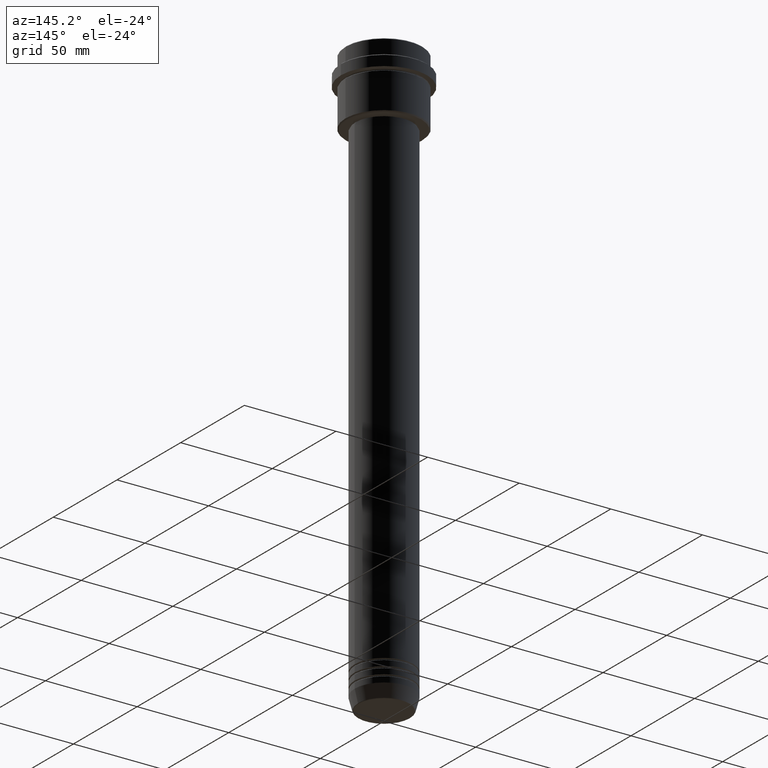
[diagram: clean part render]
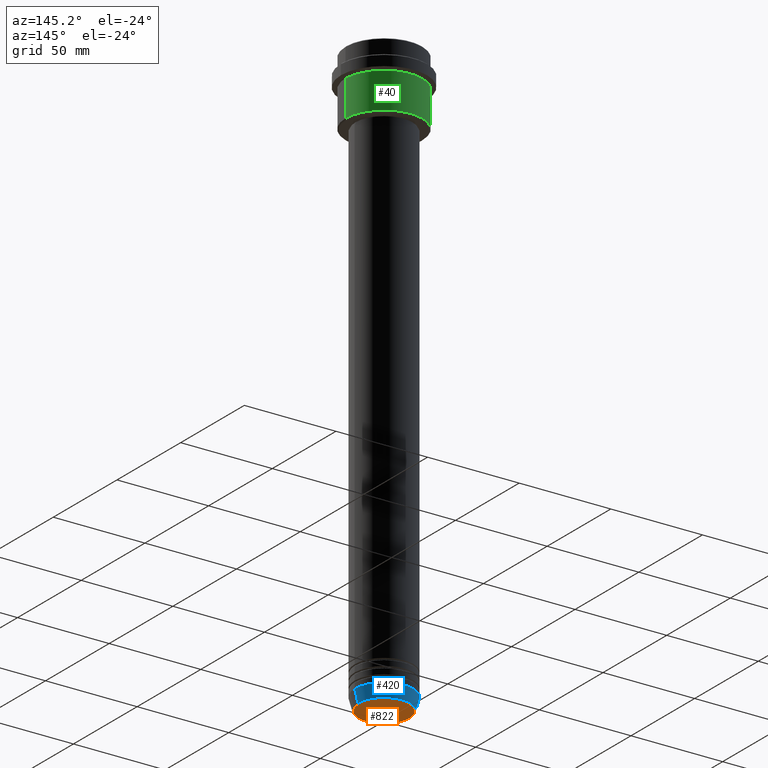
[diagram: same view with three faces highlighted in distinct colors, each labeled with its STEP entity id]
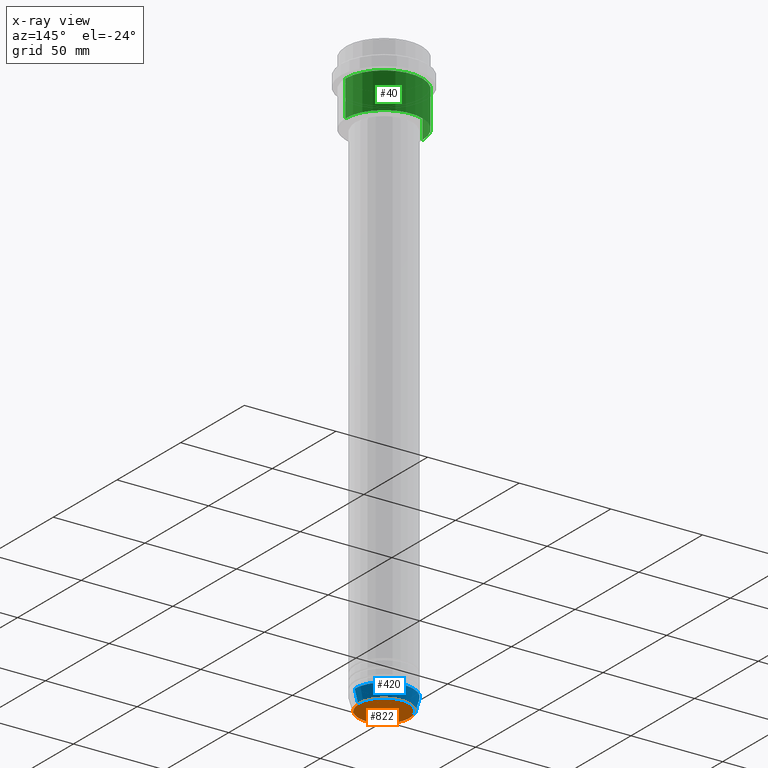
[diagram: x-ray of the same camera — body ghosted, the three highlighted faces saturated]
A machine part, auxiliary view with three faces highlighted in distinct colors.
The next image is the same camera in x-ray (body ghosted, the three faces saturated) — at least one of them is partly hidden behind the body in this view.
Their STEP definitions:

[orange] entity #822 — the highlighted planar face has unit normal (0, -0, 1).
#29 = CARTESIAN_POINT ( 'NONE',  ( 13.74069215899265828, 0.000000000000000000, -321.0000000000000000 ) ) ;
#77 = DIRECTION ( 'NONE',  ( 0.000000000000000000, 0.000000000000000000, -1.000000000000000000 ) ) ;
#96 = CARTESIAN_POINT ( 'NONE',  ( 0.000000000000000000, 0.000000000000000000, -321.0000000000000000 ) ) ;
#183 = AXIS2_PLACEMENT_3D ( 'NONE', #96, #1268, #1059 ) ;
#220 = AXIS2_PLACEMENT_3D ( 'NONE', #275, #1127, #704 ) ;
#255 = FACE_OUTER_BOUND ( 'NONE', #1380, .T. ) ;
#266 = VERTEX_POINT ( 'NONE', #354 ) ;
#275 = CARTESIAN_POINT ( 'NONE',  ( 0.000000000000000000, 0.000000000000000000, -321.0000000000000000 ) ) ;
#354 = CARTESIAN_POINT ( 'NONE',  ( -13.74069215899265828, 1.712322416342415986E-15, -321.0000000000000000 ) ) ;
#376 = CIRCLE ( 'NONE', #770, 13.74069215899265828 ) ;
#462 = EDGE_CURVE ( 'NONE', #633, #266, #791, .T. ) ;
#524 = CARTESIAN_POINT ( 'NONE',  ( 0.000000000000000000, 0.000000000000000000, -321.0000000000000000 ) ) ;
#633 = VERTEX_POINT ( 'NONE', #29 ) ;
#689 = PLANE ( 'NONE',  #220 ) ;
#704 = DIRECTION ( 'NONE',  ( 1.000000000000000000, 0.000000000000000000, 0.000000000000000000 ) ) ;
#770 = AXIS2_PLACEMENT_3D ( 'NONE', #524, #77, #1384 ) ;
#781 = ORIENTED_EDGE ( 'NONE', *, *, #986, .T. ) ;
#791 = CIRCLE ( 'NONE', #183, 13.74069215899265828 ) ;
#822 = ADVANCED_FACE ( 'NONE', ( #255 ), #689, .F. ) ;
#986 = EDGE_CURVE ( 'NONE', #266, #633, #376, .T. ) ;
#1008 = ORIENTED_EDGE ( 'NONE', *, *, #462, .T. ) ;
#1059 = DIRECTION ( 'NONE',  ( 1.000000000000000000, 0.000000000000000000, 0.000000000000000000 ) ) ;
#1127 = DIRECTION ( 'NONE',  ( 0.000000000000000000, -0.000000000000000000, 1.000000000000000000 ) ) ;
#1268 = DIRECTION ( 'NONE',  ( 0.000000000000000000, 0.000000000000000000, -1.000000000000000000 ) ) ;
#1380 = EDGE_LOOP ( 'NONE', ( #1008, #781 ) ) ;
#1384 = DIRECTION ( 'NONE',  ( 1.000000000000000000, 0.000000000000000000, 0.000000000000000000 ) ) ;

[blue] entity #420 — the highlighted conical surface has half-angle 15 deg.
#57 = CARTESIAN_POINT ( 'NONE',  ( -16.00000000000000000, 1.959434878635765131E-15, -314.0000000000000000 ) ) ;
#156 = EDGE_CURVE ( 'NONE', #571, #728, #1118, .T. ) ;
#219 = DIRECTION ( 'NONE',  ( 1.000000000000000000, 0.000000000000000000, 0.000000000000000000 ) ) ;
#241 = CARTESIAN_POINT ( 'NONE',  ( 16.00000000000000000, 0.000000000000000000, -314.0000000000000000 ) ) ;
#244 = CONICAL_SURFACE ( 'NONE', #1085, 16.00000000000000000, 0.2617993877991500740 ) ;
#302 = DIRECTION ( 'NONE',  ( -0.000000000000000000, -0.000000000000000000, 1.000000000000000000 ) ) ;
#369 = CARTESIAN_POINT ( 'NONE',  ( 0.000000000000000000, 0.000000000000000000, -314.0000000000000000 ) ) ;
#378 = AXIS2_PLACEMENT_3D ( 'NONE', #1196, #990, #219 ) ;
#410 = CARTESIAN_POINT ( 'NONE',  ( 14.22365507213718772, 0.000000000000000000, -320.6294095225512706 ) ) ;
#420 = ADVANCED_FACE ( 'NONE', ( #1351 ), #244, .T. ) ;
#450 = CIRCLE ( 'NONE', #1411, 14.22365507213718772 ) ;
#482 = LINE ( 'NONE', #1358, #1244 ) ;
#571 = VERTEX_POINT ( 'NONE', #410 ) ;
#586 = EDGE_CURVE ( 'NONE', #571, #906, #450, .T. ) ;
#679 = DIRECTION ( 'NONE',  ( 0.2588190451025213501, 0.000000000000000000, 0.9659258262890680902 ) ) ;
#711 = EDGE_LOOP ( 'NONE', ( #1274, #1402, #1276, #1417 ) ) ;
#728 = VERTEX_POINT ( 'NONE', #241 ) ;
#733 = DIRECTION ( 'NONE',  ( 1.000000000000000000, 0.000000000000000000, 0.000000000000000000 ) ) ;
#778 = CARTESIAN_POINT ( 'NONE',  ( 16.00000000000000000, 0.000000000000000000, -314.0000000000000000 ) ) ;
#803 = DIRECTION ( 'NONE',  ( -0.000000000000000000, -0.000000000000000000, 1.000000000000000000 ) ) ;
#805 = DIRECTION ( 'NONE',  ( -0.2588190451025213501, 3.169619151431772337E-17, 0.9659258262890680902 ) ) ;
#854 = EDGE_CURVE ( 'NONE', #906, #889, #482, .T. ) ;
#889 = VERTEX_POINT ( 'NONE', #57 ) ;
#906 = VERTEX_POINT ( 'NONE', #1265 ) ;
#990 = DIRECTION ( 'NONE',  ( -0.000000000000000000, -0.000000000000000000, 1.000000000000000000 ) ) ;
#1041 = CIRCLE ( 'NONE', #378, 16.00000000000000000 ) ;
#1074 = CARTESIAN_POINT ( 'NONE',  ( 0.000000000000000000, 0.000000000000000000, -320.6294095225512706 ) ) ;
#1085 = AXIS2_PLACEMENT_3D ( 'NONE', #369, #803, #1138 ) ;
#1114 = VECTOR ( 'NONE', #679, 1000.000000000000000 ) ;
#1118 = LINE ( 'NONE', #778, #1114 ) ;
#1138 = DIRECTION ( 'NONE',  ( 1.000000000000000000, 0.000000000000000000, 0.000000000000000000 ) ) ;
#1146 = EDGE_CURVE ( 'NONE', #728, #889, #1041, .T. ) ;
#1196 = CARTESIAN_POINT ( 'NONE',  ( 0.000000000000000000, 0.000000000000000000, -314.0000000000000000 ) ) ;
#1244 = VECTOR ( 'NONE', #805, 1000.000000000000000 ) ;
#1265 = CARTESIAN_POINT ( 'NONE',  ( -14.22365507213718772, 1.850665122131323337E-15, -320.6294095225512706 ) ) ;
#1274 = ORIENTED_EDGE ( 'NONE', *, *, #586, .T. ) ;
#1276 = ORIENTED_EDGE ( 'NONE', *, *, #1146, .F. ) ;
#1351 = FACE_OUTER_BOUND ( 'NONE', #711, .T. ) ;
#1358 = CARTESIAN_POINT ( 'NONE',  ( -16.00000000000000000, 1.959434878635765131E-15, -314.0000000000000000 ) ) ;
#1402 = ORIENTED_EDGE ( 'NONE', *, *, #854, .T. ) ;
#1411 = AXIS2_PLACEMENT_3D ( 'NONE', #1074, #302, #733 ) ;
#1417 = ORIENTED_EDGE ( 'NONE', *, *, #156, .F. ) ;

[green] entity #40 — the highlighted cylindrical surface (partial cylindrical patch) has radius 21 mm, axis along (-0, -0, 1).
#7 = LINE ( 'NONE', #1009, #652 ) ;
#25 = CARTESIAN_POINT ( 'NONE',  ( 21.00000000000000000, 0.000000000000000000, -16.00000000000000355 ) ) ;
#40 = ADVANCED_FACE ( 'NONE', ( #411 ), #1160, .T. ) ;
#43 = AXIS2_PLACEMENT_3D ( 'NONE', #53, #66, #501 ) ;
#53 = CARTESIAN_POINT ( 'NONE',  ( 0.000000000000000000, 0.000000000000000000, -16.00000000000000355 ) ) ;
#58 = CARTESIAN_POINT ( 'NONE',  ( -21.00000000000000000, 2.571758278209441661E-15, -16.00000000000000355 ) ) ;
#66 = DIRECTION ( 'NONE',  ( -0.000000000000000000, -0.000000000000000000, 1.000000000000000000 ) ) ;
#82 = AXIS2_PLACEMENT_3D ( 'NONE', #400, #1052, #1292 ) ;
#88 = CIRCLE ( 'NONE', #1025, 21.00000000000000000 ) ;
#136 = VECTOR ( 'NONE', #270, 1000.000000000000000 ) ;
#161 = ORIENTED_EDGE ( 'NONE', *, *, #872, .F. ) ;
#173 = CARTESIAN_POINT ( 'NONE',  ( -21.00000000000000000, 2.571758278209441661E-15, -35.49999999999997868 ) ) ;
#179 = VERTEX_POINT ( 'NONE', #772 ) ;
#263 = ORIENTED_EDGE ( 'NONE', *, *, #617, .T. ) ;
#270 = DIRECTION ( 'NONE',  ( -0.000000000000000000, -0.000000000000000000, 1.000000000000000000 ) ) ;
#272 = EDGE_CURVE ( 'NONE', #1326, #273, #765, .T. ) ;
#273 = VERTEX_POINT ( 'NONE', #58 ) ;
#319 = DIRECTION ( 'NONE',  ( -0.000000000000000000, -0.000000000000000000, 1.000000000000000000 ) ) ;
#400 = CARTESIAN_POINT ( 'NONE',  ( 0.000000000000000000, 0.000000000000000000, 0.000000000000000000 ) ) ;
#411 = FACE_OUTER_BOUND ( 'NONE', #743, .T. ) ;
#501 = DIRECTION ( 'NONE',  ( 1.000000000000000000, 0.000000000000000000, 0.000000000000000000 ) ) ;
#617 = EDGE_CURVE ( 'NONE', #773, #273, #7, .T. ) ;
#624 = EDGE_CURVE ( 'NONE', #179, #773, #88, .T. ) ;
#652 = VECTOR ( 'NONE', #319, 1000.000000000000000 ) ;
#660 = DIRECTION ( 'NONE',  ( -0.000000000000000000, -0.000000000000000000, 1.000000000000000000 ) ) ;
#709 = CARTESIAN_POINT ( 'NONE',  ( 21.00000000000000000, 0.000000000000000000, 0.000000000000000000 ) ) ;
#722 = ORIENTED_EDGE ( 'NONE', *, *, #624, .T. ) ;
#743 = EDGE_LOOP ( 'NONE', ( #722, #263, #942, #161 ) ) ;
#754 = CARTESIAN_POINT ( 'NONE',  ( 0.000000000000000000, 0.000000000000000000, -35.49999999999997868 ) ) ;
#765 = CIRCLE ( 'NONE', #43, 21.00000000000000000 ) ;
#772 = CARTESIAN_POINT ( 'NONE',  ( 21.00000000000000000, 0.000000000000000000, -35.49999999999997868 ) ) ;
#773 = VERTEX_POINT ( 'NONE', #173 ) ;
#872 = EDGE_CURVE ( 'NONE', #179, #1326, #1248, .T. ) ;
#942 = ORIENTED_EDGE ( 'NONE', *, *, #272, .F. ) ;
#1009 = CARTESIAN_POINT ( 'NONE',  ( -21.00000000000000000, 2.571758278209441661E-15, 0.000000000000000000 ) ) ;
#1025 = AXIS2_PLACEMENT_3D ( 'NONE', #754, #660, #1198 ) ;
#1052 = DIRECTION ( 'NONE',  ( -0.000000000000000000, -0.000000000000000000, 1.000000000000000000 ) ) ;
#1160 = CYLINDRICAL_SURFACE ( 'NONE', #82, 21.00000000000000000 ) ;
#1198 = DIRECTION ( 'NONE',  ( -1.000000000000000000, 0.000000000000000000, 0.000000000000000000 ) ) ;
#1248 = LINE ( 'NONE', #709, #136 ) ;
#1292 = DIRECTION ( 'NONE',  ( 1.000000000000000000, 0.000000000000000000, 0.000000000000000000 ) ) ;
#1326 = VERTEX_POINT ( 'NONE', #25 ) ;